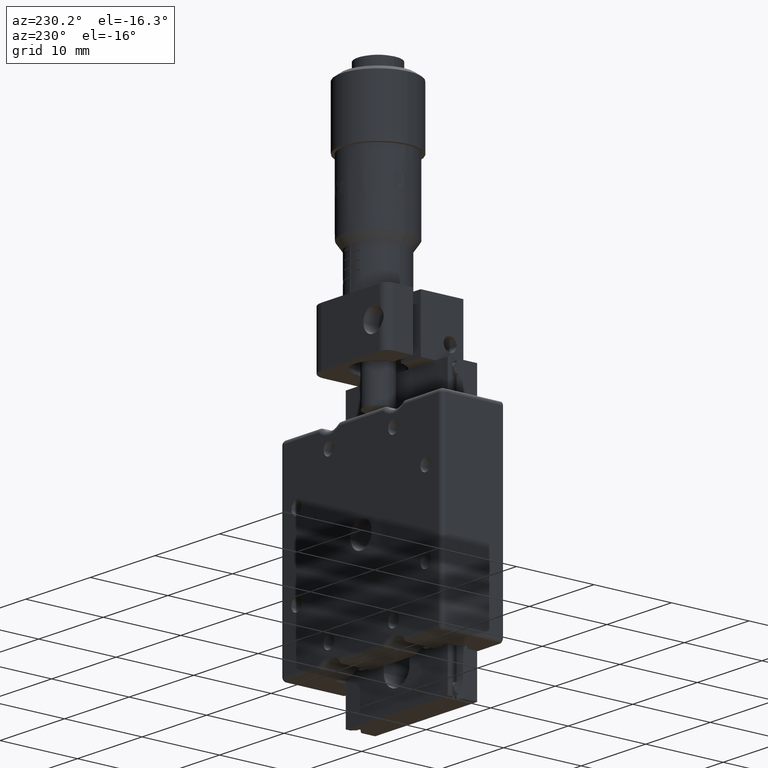
[diagram: clean part render]
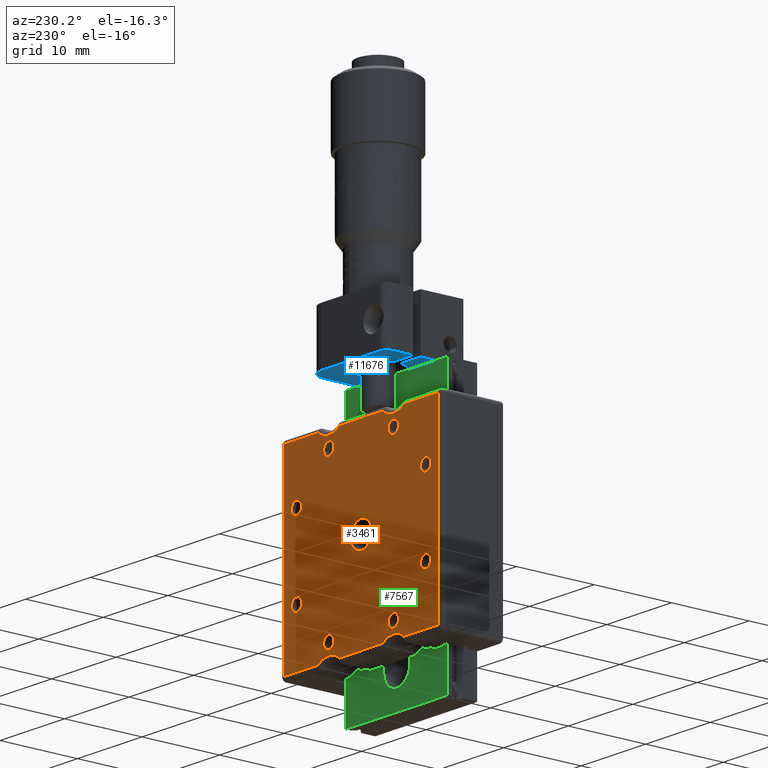
[diagram: same view with three faces highlighted in distinct colors, each labeled with its STEP entity id]
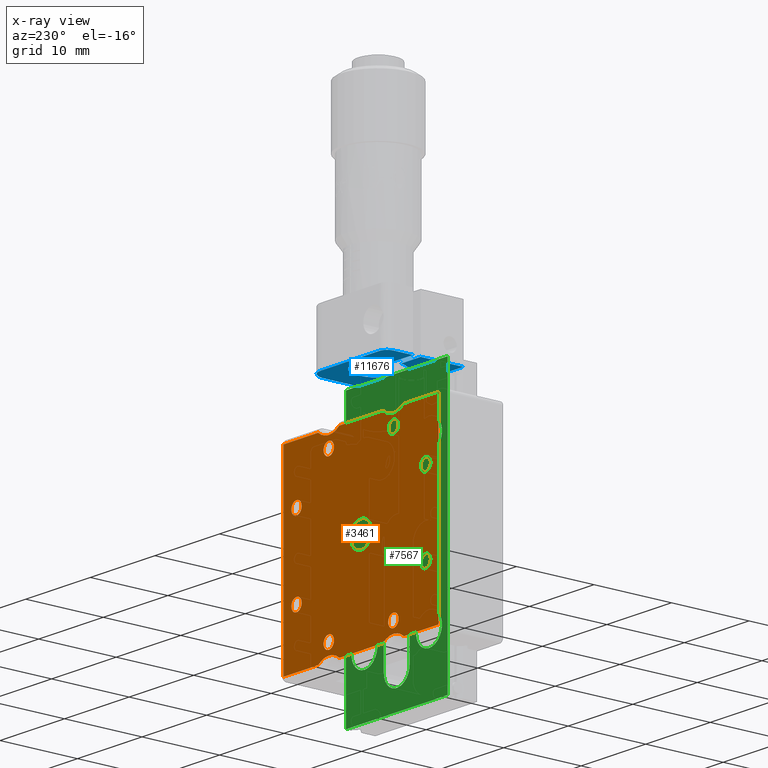
[diagram: x-ray of the same camera — body ghosted, the three highlighted faces saturated]
A machine part, auxiliary view with three faces highlighted in distinct colors.
The next image is the same camera in x-ray (body ghosted, the three faces saturated) — at least one of them is partly hidden behind the body in this view.
Their STEP definitions:

[orange] entity #3461 — the highlighted planar face has unit normal (-0, -1, -0).
#119 = AXIS2_PLACEMENT_3D ( 'NONE', #15915, #32267, #29663 ) ;
#176 = ORIENTED_EDGE ( 'NONE', *, *, #8855, .T. ) ;
#282 = DIRECTION ( 'NONE',  ( -1.224606353822329900E-016, 1.000000000000000000, 7.006492321624085400E-046 ) ) ;
#326 = DIRECTION ( 'NONE',  ( -4.044532502549928800E-021, -1.000000000000000000, -7.006492321624085400E-046 ) ) ;
#500 = DIRECTION ( 'NONE',  ( -1.224606353822329900E-016, 1.000000000000000000, 7.006492321624085400E-046 ) ) ;
#593 = CARTESIAN_POINT ( 'NONE',  ( 12.00000000000086300, 8.400000000000030600, -12.00000000000000000 ) ) ;
#758 = DIRECTION ( 'NONE',  ( -1.000000000000000000, 0.0000000000000000000, 0.0000000000000000000 ) ) ;
#854 = CARTESIAN_POINT ( 'NONE',  ( -9.999999999999136700, 8.400000000000030600, 4.200000000000012600 ) ) ;
#903 = CARTESIAN_POINT ( 'NONE',  ( 5.000000000000863300, 8.400000000000030600, -10.79999999999998800 ) ) ;
#992 = AXIS2_PLACEMENT_3D ( 'NONE', #5194, #32387, #15790 ) ;
#1005 = CIRCLE ( 'NONE', #26705, 0.7999999999999882800 ) ;
#1041 = EDGE_CURVE ( 'NONE', #24028, #10376, #7653, .T. ) ;
#1104 = DIRECTION ( 'NONE',  ( 0.0000000000000000000, 0.0000000000000000000, -1.000000000000000000 ) ) ;
#1442 = AXIS2_PLACEMENT_3D ( 'NONE', #12962, #32057, #31941 ) ;
#1452 = EDGE_CURVE ( 'NONE', #26220, #10313, #31424, .T. ) ;
#1453 = EDGE_LOOP ( 'NONE', ( #26961, #25171, #21685, #8122, #176, #30152, #15830, #29830, #18537, #23414, #3175, #18245 ) ) ;
#1531 = EDGE_CURVE ( 'NONE', #21323, #17814, #11037, .T. ) ;
#1537 = EDGE_CURVE ( 'NONE', #29341, #8365, #30989, .T. ) ;
#1688 = AXIS2_PLACEMENT_3D ( 'NONE', #17999, #12877, #31612 ) ;
#1898 = CARTESIAN_POINT ( 'NONE',  ( 10.00000000000086200, 8.400000000000030600, -5.000000000000000000 ) ) ;
#1962 = DIRECTION ( 'NONE',  ( -1.224606353822329900E-016, 1.000000000000000000, 7.006492321624085400E-046 ) ) ;
#2083 = CIRCLE ( 'NONE', #10636, 0.7999999999999882800 ) ;
#2183 = EDGE_CURVE ( 'NONE', #8365, #29341, #10181, .T. ) ;
#2433 = FACE_BOUND ( 'NONE', #30634, .T. ) ;
#2457 = DIRECTION ( 'NONE',  ( 0.0000000000000000000, 0.0000000000000000000, -1.000000000000000000 ) ) ;
#2535 = DIRECTION ( 'NONE',  ( -1.000000000000000000, 4.044532502549928800E-021, 8.580478394927459300E-062 ) ) ;
#2583 = CARTESIAN_POINT ( 'NONE',  ( 12.00000000000086300, 8.400000000000030600, -12.50000000000000000 ) ) ;
#2630 = AXIS2_PLACEMENT_3D ( 'NONE', #6811, #4083, #14912 ) ;
#2772 = ORIENTED_EDGE ( 'NONE', *, *, #3886, .F. ) ;
#3024 = VERTEX_POINT ( 'NONE', #33547 ) ;
#3112 = CARTESIAN_POINT ( 'NONE',  ( 10.00000000000086300, 8.400000000000030600, 5.799999999999986500 ) ) ;
#3175 = ORIENTED_EDGE ( 'NONE', *, *, #22542, .T. ) ;
#3198 = CARTESIAN_POINT ( 'NONE',  ( 5.000000000000863300, 8.400000000000030600, -9.200000000000011700 ) ) ;
#3321 = CARTESIAN_POINT ( 'NONE',  ( -12.49999999999913700, 8.400000000000030600, -12.50000000000000000 ) ) ;
#3362 = ORIENTED_EDGE ( 'NONE', *, *, #5575, .F. ) ;
#3461 = ADVANCED_FACE ( 'NONE', ( #12659, #31348, #16085, #24107, #2433, #28807, #16953, #33483, #8858, #30514 ), #8934, .F. ) ;
#3471 = VECTOR ( 'NONE', #8369, 1000.000000000000000 ) ;
#3478 = CARTESIAN_POINT ( 'NONE',  ( 3.375192319073669900, 8.400000000000030600, 12.00000000000000000 ) ) ;
#3886 = EDGE_CURVE ( 'NONE', #6226, #31809, #6694, .T. ) ;
#3949 = EDGE_CURVE ( 'NONE', #10313, #26220, #13075, .T. ) ;
#4083 = DIRECTION ( 'NONE',  ( -1.224606353822329900E-016, 1.000000000000000000, 7.006492321624085400E-046 ) ) ;
#4332 = AXIS2_PLACEMENT_3D ( 'NONE', #33725, #17478, #12113 ) ;
#4363 = CIRCLE ( 'NONE', #29155, 0.7999999999999882800 ) ;
#4373 = EDGE_CURVE ( 'NONE', #11868, #31459, #29595, .T. ) ;
#5194 = CARTESIAN_POINT ( 'NONE',  ( -9.999999999999136700, 8.400000000000030600, 5.000000000000000900 ) ) ;
#5213 = VERTEX_POINT ( 'NONE', #10132 ) ;
#5221 = AXIS2_PLACEMENT_3D ( 'NONE', #3321, #326, #27831 ) ;
#5575 = EDGE_CURVE ( 'NONE', #16766, #8465, #4363, .T. ) ;
#5695 = DIRECTION ( 'NONE',  ( 7.507670638184694700E-062, -6.130680781421074700E-046, -1.000000000000000000 ) ) ;
#6086 = CIRCLE ( 'NONE', #1442, 0.7999999999999882800 ) ;
#6226 = VERTEX_POINT ( 'NONE', #3112 ) ;
#6329 = EDGE_CURVE ( 'NONE', #32586, #20961, #32819, .T. ) ;
#6518 = AXIS2_PLACEMENT_3D ( 'NONE', #28107, #14799, #9107 ) ;
#6694 = CIRCLE ( 'NONE', #20932, 0.7999999999999882800 ) ;
#6811 = CARTESIAN_POINT ( 'NONE',  ( -4.999999999999130500, 8.400000000000030600, 10.00000000000000000 ) ) ;
#7281 = DIRECTION ( 'NONE',  ( 0.0000000000000000000, 0.0000000000000000000, -1.000000000000000000 ) ) ;
#7344 = EDGE_CURVE ( 'NONE', #14289, #11868, #31476, .T. ) ;
#7441 = ORIENTED_EDGE ( 'NONE', *, *, #24178, .F. ) ;
#7559 = EDGE_CURVE ( 'NONE', #34124, #34896, #20824, .T. ) ;
#7653 = LINE ( 'NONE', #19491, #31868 ) ;
#7712 = CARTESIAN_POINT ( 'NONE',  ( 5.000000000000863300, 8.400000000000030600, 9.200000000000011700 ) ) ;
#8038 = ORIENTED_EDGE ( 'NONE', *, *, #7559, .F. ) ;
#8122 = ORIENTED_EDGE ( 'NONE', *, *, #8845, .T. ) ;
#8233 = EDGE_CURVE ( 'NONE', #11828, #28618, #21627, .T. ) ;
#8365 = VERTEX_POINT ( 'NONE', #27031 ) ;
#8369 = DIRECTION ( 'NONE',  ( 1.000000000000000000, -4.044532502549928800E-021, -8.580478394927459300E-062 ) ) ;
#8380 = CARTESIAN_POINT ( 'NONE',  ( 12.00000000000086300, 8.400000000000030600, 12.00000000000000000 ) ) ;
#8465 = VERTEX_POINT ( 'NONE', #903 ) ;
#8554 = EDGE_CURVE ( 'NONE', #8465, #16766, #2083, .T. ) ;
#8711 = EDGE_CURVE ( 'NONE', #34896, #34124, #31817, .T. ) ;
#8783 = CARTESIAN_POINT ( 'NONE',  ( -9.999999999999134900, 8.400000000000030600, -4.999999999999997300 ) ) ;
#8801 = AXIS2_PLACEMENT_3D ( 'NONE', #16501, #30120, #27277 ) ;
#8845 = EDGE_CURVE ( 'NONE', #29030, #3024, #23730, .T. ) ;
#8855 = EDGE_CURVE ( 'NONE', #3024, #14289, #19109, .T. ) ;
#8858 = FACE_BOUND ( 'NONE', #29976, .T. ) ;
#8934 = PLANE ( 'NONE',  #5221 ) ;
#9065 = EDGE_LOOP ( 'NONE', ( #26368, #9853 ) ) ;
#9107 = DIRECTION ( 'NONE',  ( 0.0000000000000000000, 0.0000000000000000000, -1.000000000000000000 ) ) ;
#9214 = AXIS2_PLACEMENT_3D ( 'NONE', #11629, #30502, #758 ) ;
#9538 = DIRECTION ( 'NONE',  ( -1.000000000000000000, 4.044532502549928800E-021, 8.580478394927459300E-062 ) ) ;
#9545 = CIRCLE ( 'NONE', #8801, 0.7999999999999882800 ) ;
#9672 = CARTESIAN_POINT ( 'NONE',  ( 10.00000000000086200, 8.400000000000030600, -5.799999999999988300 ) ) ;
#9853 = ORIENTED_EDGE ( 'NONE', *, *, #8233, .F. ) ;
#10026 = CARTESIAN_POINT ( 'NONE',  ( -4.999999999999130500, 8.400000000000030600, 10.79999999999998800 ) ) ;
#10132 = CARTESIAN_POINT ( 'NONE',  ( 5.000000000000863300, 8.400000000000030600, 10.79999999999998800 ) ) ;
#10181 = CIRCLE ( 'NONE', #11570, 0.7999999999999882800 ) ;
#10313 = VERTEX_POINT ( 'NONE', #13839 ) ;
#10376 = VERTEX_POINT ( 'NONE', #3478 ) ;
#10417 = CARTESIAN_POINT ( 'NONE',  ( -12.49999999999913700, 8.400000000000030600, -12.00000000000000000 ) ) ;
#10636 = AXIS2_PLACEMENT_3D ( 'NONE', #26765, #13260, #26523 ) ;
#11037 = CIRCLE ( 'NONE', #2630, 0.7999999999999882800 ) ;
#11118 = CARTESIAN_POINT ( 'NONE',  ( -4.999999999999130500, 8.400000000000030600, -10.79999999999998800 ) ) ;
#11289 = AXIS2_PLACEMENT_3D ( 'NONE', #14107, #32967, #13750 ) ;
#11470 = CARTESIAN_POINT ( 'NONE',  ( -9.999999999999136700, 8.400000000000030600, 5.799999999999989200 ) ) ;
#11570 = AXIS2_PLACEMENT_3D ( 'NONE', #33077, #500, #16732 ) ;
#11629 = CARTESIAN_POINT ( 'NONE',  ( -4.999999999999136700, 8.400000000000030600, 13.89999999999999700 ) ) ;
#11828 = VERTEX_POINT ( 'NONE', #19669 ) ;
#11851 = DIRECTION ( 'NONE',  ( 0.0000000000000000000, 0.0000000000000000000, -1.000000000000000000 ) ) ;
#11868 = VERTEX_POINT ( 'NONE', #12041 ) ;
#11872 = DIRECTION ( 'NONE',  ( -4.044532502549928800E-021, -1.000000000000000000, -7.006492321624085400E-046 ) ) ;
#12041 = CARTESIAN_POINT ( 'NONE',  ( -3.375192319071941500, 8.400000000000030600, -12.00000000000000000 ) ) ;
#12048 = CARTESIAN_POINT ( 'NONE',  ( -11.99999999999913700, 8.400000000000030600, -12.00000000000000000 ) ) ;
#12113 = DIRECTION ( 'NONE',  ( -1.000000000000000000, 0.0000000000000000000, 0.0000000000000000000 ) ) ;
#12138 = VECTOR ( 'NONE', #5695, 1000.000000000000000 ) ;
#12188 = LINE ( 'NONE', #31725, #13046 ) ;
#12459 = AXIS2_PLACEMENT_3D ( 'NONE', #15207, #1962, #23590 ) ;
#12536 = AXIS2_PLACEMENT_3D ( 'NONE', #25500, #11872, #19972 ) ;
#12590 = VERTEX_POINT ( 'NONE', #29393 ) ;
#12659 = FACE_OUTER_BOUND ( 'NONE', #1453, .T. ) ;
#12674 = ORIENTED_EDGE ( 'NONE', *, *, #25319, .F. ) ;
#12735 = CIRCLE ( 'NONE', #12536, 2.500000000000000000 ) ;
#12877 = DIRECTION ( 'NONE',  ( -1.224606353822329900E-016, 1.000000000000000000, 7.006492321624085400E-046 ) ) ;
#12962 = CARTESIAN_POINT ( 'NONE',  ( 5.000000000000863300, 8.400000000000030600, 10.00000000000000000 ) ) ;
#13046 = VECTOR ( 'NONE', #15492, 1000.000000000000000 ) ;
#13075 = CIRCLE ( 'NONE', #16168, 0.7999999999999882800 ) ;
#13260 = DIRECTION ( 'NONE',  ( -1.224606353822329900E-016, 1.000000000000000000, 7.006492321624085400E-046 ) ) ;
#13750 = DIRECTION ( 'NONE',  ( 0.0000000000000000000, 0.0000000000000000000, -1.000000000000000000 ) ) ;
#13839 = CARTESIAN_POINT ( 'NONE',  ( -9.999999999999134900, 8.400000000000030600, -5.799999999999985600 ) ) ;
#14107 = CARTESIAN_POINT ( 'NONE',  ( -9.999999999999136700, 8.400000000000030600, 5.000000000000000900 ) ) ;
#14130 = DIRECTION ( 'NONE',  ( 0.0000000000000000000, 0.0000000000000000000, -1.000000000000000000 ) ) ;
#14289 = VERTEX_POINT ( 'NONE', #31869 ) ;
#14332 = CIRCLE ( 'NONE', #9214, 2.500000000000000400 ) ;
#14799 = DIRECTION ( 'NONE',  ( -1.224606353822329900E-016, 1.000000000000000000, 7.006492321624085400E-046 ) ) ;
#14912 = DIRECTION ( 'NONE',  ( 0.0000000000000000000, 0.0000000000000000000, -1.000000000000000000 ) ) ;
#14964 = ORIENTED_EDGE ( 'NONE', *, *, #24491, .F. ) ;
#15101 = ORIENTED_EDGE ( 'NONE', *, *, #1452, .F. ) ;
#15110 = LINE ( 'NONE', #2583, #12138 ) ;
#15207 = CARTESIAN_POINT ( 'NONE',  ( -4.999999999999130500, 8.400000000000030600, -10.00000000000000000 ) ) ;
#15244 = VECTOR ( 'NONE', #2535, 1000.000000000000000 ) ;
#15492 = DIRECTION ( 'NONE',  ( -7.507670638184694700E-062, 6.130680781421074700E-046, 1.000000000000000000 ) ) ;
#15790 = DIRECTION ( 'NONE',  ( 0.0000000000000000000, 0.0000000000000000000, -1.000000000000000000 ) ) ;
#15824 = EDGE_LOOP ( 'NONE', ( #23496, #8038 ) ) ;
#15830 = ORIENTED_EDGE ( 'NONE', *, *, #4373, .T. ) ;
#15915 = CARTESIAN_POINT ( 'NONE',  ( 5.000000000000866900, 8.400000000000030600, -13.89999999999999900 ) ) ;
#16085 = FACE_BOUND ( 'NONE', #28875, .T. ) ;
#16168 = AXIS2_PLACEMENT_3D ( 'NONE', #8783, #25136, #11851 ) ;
#16501 = CARTESIAN_POINT ( 'NONE',  ( -4.999999999999130500, 8.400000000000030600, 10.00000000000000000 ) ) ;
#16732 = DIRECTION ( 'NONE',  ( 0.0000000000000000000, 0.0000000000000000000, -1.000000000000000000 ) ) ;
#16763 = CARTESIAN_POINT ( 'NONE',  ( 10.00000000000086300, 8.400000000000030600, 4.999999999999998200 ) ) ;
#16766 = VERTEX_POINT ( 'NONE', #3198 ) ;
#16953 = FACE_BOUND ( 'NONE', #17183, .T. ) ;
#16994 = DIRECTION ( 'NONE',  ( 1.000000000000000000, -4.044532502549928800E-021, -8.580478394927459300E-062 ) ) ;
#17183 = EDGE_LOOP ( 'NONE', ( #25554, #3362 ) ) ;
#17478 = DIRECTION ( 'NONE',  ( -4.044532502549928800E-021, -1.000000000000000000, -7.006492321624085400E-046 ) ) ;
#17814 = VERTEX_POINT ( 'NONE', #23081 ) ;
#17999 = CARTESIAN_POINT ( 'NONE',  ( -4.999999999999130500, 8.400000000000030600, -10.00000000000000000 ) ) ;
#18245 = ORIENTED_EDGE ( 'NONE', *, *, #1041, .T. ) ;
#18329 = VECTOR ( 'NONE', #9538, 1000.000000000000000 ) ;
#18478 = CIRCLE ( 'NONE', #992, 0.7999999999999882800 ) ;
#18515 = CARTESIAN_POINT ( 'NONE',  ( -11.99999999999913700, 8.400000000000030600, 12.00000000000000000 ) ) ;
#18535 = EDGE_CURVE ( 'NONE', #10376, #32586, #12735, .T. ) ;
#18537 = ORIENTED_EDGE ( 'NONE', *, *, #32324, .T. ) ;
#18639 = CARTESIAN_POINT ( 'NONE',  ( 5.000000000000863300, 8.400000000000030600, -10.00000000000000000 ) ) ;
#18677 = CARTESIAN_POINT ( 'NONE',  ( -9.999999999999134900, 8.400000000000030600, -4.200000000000009100 ) ) ;
#18778 = DIRECTION ( 'NONE',  ( -1.224606353822329900E-016, 1.000000000000000000, 7.006492321624085400E-046 ) ) ;
#18812 = ORIENTED_EDGE ( 'NONE', *, *, #24637, .F. ) ;
#19009 = DIRECTION ( 'NONE',  ( 1.000000000000000000, -4.044532502549928800E-021, -8.580478394927459300E-062 ) ) ;
#19109 = CIRCLE ( 'NONE', #119, 2.500000000000000000 ) ;
#19491 = CARTESIAN_POINT ( 'NONE',  ( 3.571714314292290900, 8.400000000000030600, 12.00000000000000000 ) ) ;
#19564 = CARTESIAN_POINT ( 'NONE',  ( -6.624807680926325700, 8.400000000000030600, -12.00000000000000000 ) ) ;
#19668 = VERTEX_POINT ( 'NONE', #7712 ) ;
#19669 = CARTESIAN_POINT ( 'NONE',  ( 8.663820462318324000E-013, 8.400000000000030600, 1.649999999999988400 ) ) ;
#19753 = AXIS2_PLACEMENT_3D ( 'NONE', #1898, #29491, #7281 ) ;
#19883 = ORIENTED_EDGE ( 'NONE', *, *, #20587, .F. ) ;
#19972 = DIRECTION ( 'NONE',  ( -1.000000000000000000, 0.0000000000000000000, 0.0000000000000000000 ) ) ;
#20062 = CARTESIAN_POINT ( 'NONE',  ( 5.000000000000863300, 8.400000000000030600, 10.00000000000000000 ) ) ;
#20223 = EDGE_LOOP ( 'NONE', ( #12674, #19883 ) ) ;
#20466 = CARTESIAN_POINT ( 'NONE',  ( -12.49999999999913700, 8.400000000000030600, -12.00000000000000000 ) ) ;
#20487 = AXIS2_PLACEMENT_3D ( 'NONE', #35040, #18778, #2457 ) ;
#20587 = EDGE_CURVE ( 'NONE', #5213, #19668, #25768, .T. ) ;
#20824 = CIRCLE ( 'NONE', #1688, 0.7999999999999882800 ) ;
#20932 = AXIS2_PLACEMENT_3D ( 'NONE', #16763, #282, #14130 ) ;
#20961 = VERTEX_POINT ( 'NONE', #8380 ) ;
#21019 = EDGE_LOOP ( 'NONE', ( #25220, #15101 ) ) ;
#21323 = VERTEX_POINT ( 'NONE', #10026 ) ;
#21567 = DIRECTION ( 'NONE',  ( -1.000000000000000000, 4.044532502549928800E-021, 8.580478394927459300E-062 ) ) ;
#21627 = CIRCLE ( 'NONE', #32675, 1.649999999999988400 ) ;
#21685 = ORIENTED_EDGE ( 'NONE', *, *, #23392, .T. ) ;
#21980 = VERTEX_POINT ( 'NONE', #12048 ) ;
#22088 = DIRECTION ( 'NONE',  ( -1.224606353822329900E-016, 1.000000000000000000, 7.006492321624085400E-046 ) ) ;
#22190 = ORIENTED_EDGE ( 'NONE', *, *, #1537, .F. ) ;
#22206 = CARTESIAN_POINT ( 'NONE',  ( 10.00000000000086300, 8.400000000000030600, 4.999999999999998200 ) ) ;
#22542 = EDGE_CURVE ( 'NONE', #12590, #24028, #14332, .T. ) ;
#23081 = CARTESIAN_POINT ( 'NONE',  ( -4.999999999999130500, 8.400000000000030600, 9.200000000000011700 ) ) ;
#23158 = CARTESIAN_POINT ( 'NONE',  ( -3.375192319071940600, 8.400000000000030600, 12.00000000000000000 ) ) ;
#23392 = EDGE_CURVE ( 'NONE', #20961, #29030, #15110, .T. ) ;
#23414 = ORIENTED_EDGE ( 'NONE', *, *, #26631, .T. ) ;
#23496 = ORIENTED_EDGE ( 'NONE', *, *, #8711, .F. ) ;
#23590 = DIRECTION ( 'NONE',  ( 0.0000000000000000000, 0.0000000000000000000, -1.000000000000000000 ) ) ;
#23596 = DIRECTION ( 'NONE',  ( -1.224606353822329900E-016, 1.000000000000000000, 7.006492321624085400E-046 ) ) ;
#23730 = LINE ( 'NONE', #26671, #24586 ) ;
#24028 = VERTEX_POINT ( 'NONE', #23158 ) ;
#24107 = FACE_BOUND ( 'NONE', #20223, .T. ) ;
#24178 = EDGE_CURVE ( 'NONE', #31809, #6226, #1005, .T. ) ;
#24491 = EDGE_CURVE ( 'NONE', #32063, #24815, #18478, .T. ) ;
#24586 = VECTOR ( 'NONE', #21567, 1000.000000000000000 ) ;
#24603 = EDGE_CURVE ( 'NONE', #24815, #32063, #31188, .T. ) ;
#24637 = EDGE_CURVE ( 'NONE', #17814, #21323, #9545, .T. ) ;
#24724 = DIRECTION ( 'NONE',  ( 0.0000000000000000000, 0.0000000000000000000, -1.000000000000000000 ) ) ;
#24815 = VERTEX_POINT ( 'NONE', #854 ) ;
#25044 = DIRECTION ( 'NONE',  ( 0.0000000000000000000, 0.0000000000000000000, -1.000000000000000000 ) ) ;
#25136 = DIRECTION ( 'NONE',  ( -1.224606353822329900E-016, 1.000000000000000000, 7.006492321624085400E-046 ) ) ;
#25171 = ORIENTED_EDGE ( 'NONE', *, *, #6329, .T. ) ;
#25220 = ORIENTED_EDGE ( 'NONE', *, *, #3949, .F. ) ;
#25319 = EDGE_CURVE ( 'NONE', #19668, #5213, #6086, .T. ) ;
#25500 = CARTESIAN_POINT ( 'NONE',  ( 5.000000000000863300, 8.400000000000030600, 13.89999999999999900 ) ) ;
#25554 = ORIENTED_EDGE ( 'NONE', *, *, #8554, .F. ) ;
#25566 = LINE ( 'NONE', #30025, #28562 ) ;
#25630 = CARTESIAN_POINT ( 'NONE',  ( 8.663330686511581400E-013, 8.400000000000030600, -1.649999999999988400 ) ) ;
#25649 = CARTESIAN_POINT ( 'NONE',  ( -4.999999999999130500, 8.400000000000030600, -9.200000000000011700 ) ) ;
#25768 = CIRCLE ( 'NONE', #30527, 0.7999999999999882800 ) ;
#26220 = VERTEX_POINT ( 'NONE', #18677 ) ;
#26368 = ORIENTED_EDGE ( 'NONE', *, *, #34364, .F. ) ;
#26523 = DIRECTION ( 'NONE',  ( 0.0000000000000000000, 0.0000000000000000000, -1.000000000000000000 ) ) ;
#26631 = EDGE_CURVE ( 'NONE', #30073, #12590, #25566, .T. ) ;
#26671 = CARTESIAN_POINT ( 'NONE',  ( -12.49999999999913700, 8.400000000000030600, -12.00000000000000000 ) ) ;
#26705 = AXIS2_PLACEMENT_3D ( 'NONE', #22206, #22088, #25044 ) ;
#26765 = CARTESIAN_POINT ( 'NONE',  ( 5.000000000000863300, 8.400000000000030600, -10.00000000000000000 ) ) ;
#26961 = ORIENTED_EDGE ( 'NONE', *, *, #18535, .T. ) ;
#27031 = CARTESIAN_POINT ( 'NONE',  ( 10.00000000000086200, 8.400000000000030600, -4.200000000000011700 ) ) ;
#27277 = DIRECTION ( 'NONE',  ( 0.0000000000000000000, 0.0000000000000000000, -1.000000000000000000 ) ) ;
#27735 = CARTESIAN_POINT ( 'NONE',  ( 8.663330686511581400E-013, 8.400000000000030600, -7.244863524839539800E-017 ) ) ;
#27831 = DIRECTION ( 'NONE',  ( -1.000000000000000000, 4.044532502549928800E-021, 8.580478394927459300E-062 ) ) ;
#28107 = CARTESIAN_POINT ( 'NONE',  ( -9.999999999999134900, 8.400000000000030600, -4.999999999999997300 ) ) ;
#28562 = VECTOR ( 'NONE', #16994, 1000.000000000000000 ) ;
#28618 = VERTEX_POINT ( 'NONE', #25630 ) ;
#28807 = FACE_BOUND ( 'NONE', #15824, .T. ) ;
#28827 = LINE ( 'NONE', #10417, #15244 ) ;
#28875 = EDGE_LOOP ( 'NONE', ( #7441, #2772 ) ) ;
#29030 = VERTEX_POINT ( 'NONE', #593 ) ;
#29155 = AXIS2_PLACEMENT_3D ( 'NONE', #18639, #23596, #31792 ) ;
#29341 = VERTEX_POINT ( 'NONE', #9672 ) ;
#29393 = CARTESIAN_POINT ( 'NONE',  ( -6.624807680926333700, 8.400000000000030600, 12.00000000000000000 ) ) ;
#29491 = DIRECTION ( 'NONE',  ( -1.224606353822329900E-016, 1.000000000000000000, 7.006492321624085400E-046 ) ) ;
#29595 = CIRCLE ( 'NONE', #4332, 2.500000000000000400 ) ;
#29663 = DIRECTION ( 'NONE',  ( -1.000000000000000000, 0.0000000000000000000, 0.0000000000000000000 ) ) ;
#29830 = ORIENTED_EDGE ( 'NONE', *, *, #31268, .T. ) ;
#29976 = EDGE_LOOP ( 'NONE', ( #22190, #33456 ) ) ;
#30025 = CARTESIAN_POINT ( 'NONE',  ( -6.428285685707710900, 8.400000000000030600, 12.00000000000000000 ) ) ;
#30073 = VERTEX_POINT ( 'NONE', #18515 ) ;
#30120 = DIRECTION ( 'NONE',  ( -1.224606353822329900E-016, 1.000000000000000000, 7.006492321624085400E-046 ) ) ;
#30152 = ORIENTED_EDGE ( 'NONE', *, *, #7344, .T. ) ;
#30502 = DIRECTION ( 'NONE',  ( -4.044532502549928800E-021, -1.000000000000000000, -7.006492321624085400E-046 ) ) ;
#30514 = FACE_BOUND ( 'NONE', #32367, .T. ) ;
#30527 = AXIS2_PLACEMENT_3D ( 'NONE', #20062, #30724, #1104 ) ;
#30532 = CARTESIAN_POINT ( 'NONE',  ( 6.624807680928056700, 8.400000000000030600, 12.00000000000000000 ) ) ;
#30634 = EDGE_LOOP ( 'NONE', ( #18812, #33198 ) ) ;
#30724 = DIRECTION ( 'NONE',  ( -1.224606353822329900E-016, 1.000000000000000000, 7.006492321624085400E-046 ) ) ;
#30989 = CIRCLE ( 'NONE', #19753, 0.7999999999999882800 ) ;
#31188 = CIRCLE ( 'NONE', #11289, 0.7999999999999882800 ) ;
#31222 = CIRCLE ( 'NONE', #20487, 1.649999999999988400 ) ;
#31268 = EDGE_CURVE ( 'NONE', #31459, #21980, #28827, .T. ) ;
#31348 = FACE_BOUND ( 'NONE', #9065, .T. ) ;
#31424 = CIRCLE ( 'NONE', #6518, 0.7999999999999882800 ) ;
#31459 = VERTEX_POINT ( 'NONE', #19564 ) ;
#31476 = LINE ( 'NONE', #20466, #18329 ) ;
#31502 = ORIENTED_EDGE ( 'NONE', *, *, #24603, .F. ) ;
#31537 = CARTESIAN_POINT ( 'NONE',  ( 10.00000000000086300, 8.400000000000030600, 4.200000000000009900 ) ) ;
#31612 = DIRECTION ( 'NONE',  ( 0.0000000000000000000, 0.0000000000000000000, -1.000000000000000000 ) ) ;
#31725 = CARTESIAN_POINT ( 'NONE',  ( -11.99999999999913700, 8.400000000000030600, -12.50000000000000000 ) ) ;
#31792 = DIRECTION ( 'NONE',  ( 0.0000000000000000000, 0.0000000000000000000, -1.000000000000000000 ) ) ;
#31809 = VERTEX_POINT ( 'NONE', #31537 ) ;
#31817 = CIRCLE ( 'NONE', #12459, 0.7999999999999882800 ) ;
#31868 = VECTOR ( 'NONE', #19009, 1000.000000000000000 ) ;
#31869 = CARTESIAN_POINT ( 'NONE',  ( 3.375192319073673500, 8.400000000000030600, -12.00000000000000000 ) ) ;
#31941 = DIRECTION ( 'NONE',  ( 0.0000000000000000000, 0.0000000000000000000, -1.000000000000000000 ) ) ;
#32057 = DIRECTION ( 'NONE',  ( -1.224606353822329900E-016, 1.000000000000000000, 7.006492321624085400E-046 ) ) ;
#32063 = VERTEX_POINT ( 'NONE', #11470 ) ;
#32267 = DIRECTION ( 'NONE',  ( -4.044532502549928800E-021, -1.000000000000000000, -7.006492321624085400E-046 ) ) ;
#32324 = EDGE_CURVE ( 'NONE', #21980, #30073, #12188, .T. ) ;
#32367 = EDGE_LOOP ( 'NONE', ( #31502, #14964 ) ) ;
#32387 = DIRECTION ( 'NONE',  ( -1.224606353822329900E-016, 1.000000000000000000, 7.006492321624085400E-046 ) ) ;
#32586 = VERTEX_POINT ( 'NONE', #30532 ) ;
#32675 = AXIS2_PLACEMENT_3D ( 'NONE', #27735, #33050, #24724 ) ;
#32819 = LINE ( 'NONE', #35321, #3471 ) ;
#32967 = DIRECTION ( 'NONE',  ( -1.224606353822329900E-016, 1.000000000000000000, 7.006492321624085400E-046 ) ) ;
#33050 = DIRECTION ( 'NONE',  ( -1.224606353822329900E-016, 1.000000000000000000, 7.006492321624085400E-046 ) ) ;
#33077 = CARTESIAN_POINT ( 'NONE',  ( 10.00000000000086200, 8.400000000000030600, -5.000000000000000000 ) ) ;
#33198 = ORIENTED_EDGE ( 'NONE', *, *, #1531, .F. ) ;
#33456 = ORIENTED_EDGE ( 'NONE', *, *, #2183, .F. ) ;
#33483 = FACE_BOUND ( 'NONE', #21019, .T. ) ;
#33547 = CARTESIAN_POINT ( 'NONE',  ( 6.624807680928060300, 8.400000000000030600, -12.00000000000000000 ) ) ;
#33725 = CARTESIAN_POINT ( 'NONE',  ( -4.999999999999134000, 8.400000000000030600, -13.90000000000000000 ) ) ;
#34124 = VERTEX_POINT ( 'NONE', #25649 ) ;
#34364 = EDGE_CURVE ( 'NONE', #28618, #11828, #31222, .T. ) ;
#34896 = VERTEX_POINT ( 'NONE', #11118 ) ;
#35040 = CARTESIAN_POINT ( 'NONE',  ( 8.663330686511581400E-013, 8.400000000000030600, -7.244863524839539800E-017 ) ) ;
#35321 = CARTESIAN_POINT ( 'NONE',  ( 12.50000000000086500, 8.400000000000030600, 12.00000000000000000 ) ) ;

[blue] entity #11676 — the highlighted planar face has unit normal (0, -0, 1).
#295 = DIRECTION ( 'NONE',  ( 2.775557561562891400E-016, 1.142172911347806300E-016, -1.000000000000000000 ) ) ;
#470 = DIRECTION ( 'NONE',  ( -1.000000000000000000, 5.204170427930424200E-016, 0.0000000000000000000 ) ) ;
#780 = EDGE_CURVE ( 'NONE', #8758, #27624, #5132, .T. ) ;
#871 = CARTESIAN_POINT ( 'NONE',  ( -2.599999999999130100, 2.200000000000004200, 17.50000000000000000 ) ) ;
#1346 = CARTESIAN_POINT ( 'NONE',  ( -5.999999999999140200, 6.700000000000000200, 17.50000000000000000 ) ) ;
#1730 = EDGE_LOOP ( 'NONE', ( #10606, #24079 ) ) ;
#1984 = CARTESIAN_POINT ( 'NONE',  ( 3.500000000000871300, 2.199999999999998400, 17.50000000000000000 ) ) ;
#1997 = CIRCLE ( 'NONE', #19414, 0.8999999999999989100 ) ;
#2094 = CARTESIAN_POINT ( 'NONE',  ( -5.999999999999134900, 5.699999999999999300, 17.50000000000000000 ) ) ;
#2703 = VECTOR ( 'NONE', #20014, 1000.000000000000000 ) ;
#2770 = DIRECTION ( 'NONE',  ( 2.775557561562891400E-016, 1.142172911347806300E-016, -1.000000000000000000 ) ) ;
#2958 = VERTEX_POINT ( 'NONE', #8148 ) ;
#4324 = AXIS2_PLACEMENT_3D ( 'NONE', #32934, #11446, #470 ) ;
#4860 = LINE ( 'NONE', #27395, #26498 ) ;
#5073 = ORIENTED_EDGE ( 'NONE', *, *, #15362, .T. ) ;
#5132 = CIRCLE ( 'NONE', #23548, 0.8999999999999989100 ) ;
#5133 = LINE ( 'NONE', #13917, #14127 ) ;
#5239 = AXIS2_PLACEMENT_3D ( 'NONE', #21789, #2770, #5999 ) ;
#5999 = DIRECTION ( 'NONE',  ( -1.000000000000000000, 5.204170427930424200E-016, 0.0000000000000000000 ) ) ;
#6034 = VERTEX_POINT ( 'NONE', #6949 ) ;
#6118 = VECTOR ( 'NONE', #23105, 1000.000000000000000 ) ;
#6400 = CARTESIAN_POINT ( 'NONE',  ( -1.249999999999130500, 1.900000000000003000, 17.50000000000000000 ) ) ;
#6614 = ORIENTED_EDGE ( 'NONE', *, *, #20920, .T. ) ;
#6703 = VECTOR ( 'NONE', #29638, 1000.000000000000000 ) ;
#6949 = CARTESIAN_POINT ( 'NONE',  ( -5.999999999999140200, 6.700000000000000200, 17.50000000000000000 ) ) ;
#7035 = VERTEX_POINT ( 'NONE', #9102 ) ;
#7485 = CARTESIAN_POINT ( 'NONE',  ( 8.671725009159686000E-013, 6.200000000000000200, 17.50000000000000000 ) ) ;
#7735 = AXIS2_PLACEMENT_3D ( 'NONE', #22992, #9256, #28272 ) ;
#7905 = EDGE_LOOP ( 'NONE', ( #14407, #6614 ) ) ;
#7935 = CARTESIAN_POINT ( 'NONE',  ( -2.958039891548940300, 5.699999999999999300, 17.50000000000000000 ) ) ;
#8148 = CARTESIAN_POINT ( 'NONE',  ( 6.000000000000859800, 8.199999999999978000, 17.49999999999999600 ) ) ;
#8252 = DIRECTION ( 'NONE',  ( 5.551115123125781700E-016, -1.142172911347810500E-016, 1.000000000000000000 ) ) ;
#8758 = VERTEX_POINT ( 'NONE', #23703 ) ;
#9102 = CARTESIAN_POINT ( 'NONE',  ( -4.399999999999127300, 2.200000000000006800, 17.50000000000000000 ) ) ;
#9256 = DIRECTION ( 'NONE',  ( -2.775557561562891400E-016, -1.142172911347806300E-016, 1.000000000000000000 ) ) ;
#9438 = EDGE_CURVE ( 'NONE', #18928, #32299, #25409, .T. ) ;
#9977 = LINE ( 'NONE', #22474, #2703 ) ;
#10527 = LINE ( 'NONE', #32480, #6703 ) ;
#10606 = ORIENTED_EDGE ( 'NONE', *, *, #12651, .F. ) ;
#10694 = ORIENTED_EDGE ( 'NONE', *, *, #30811, .T. ) ;
#10997 = CARTESIAN_POINT ( 'NONE',  ( -4.999999999999137600, 10.19999999999998000, 17.49999999999999600 ) ) ;
#11063 = DIRECTION ( 'NONE',  ( 4.195944496594880600E-016, -1.000000000000000000, 5.082140893937399600E-016 ) ) ;
#11446 = DIRECTION ( 'NONE',  ( 2.775557561562891400E-016, 1.142172911347806300E-016, -1.000000000000000000 ) ) ;
#11531 = VERTEX_POINT ( 'NONE', #871 ) ;
#11676 = ADVANCED_FACE ( 'NONE', ( #28728, #35109, #31707, #16003 ), #21890, .F. ) ;
#11864 = VERTEX_POINT ( 'NONE', #33651 ) ;
#12651 = EDGE_CURVE ( 'NONE', #35303, #32767, #24406, .T. ) ;
#12707 = CIRCLE ( 'NONE', #21600, 1.000000000000000000 ) ;
#13262 = ORIENTED_EDGE ( 'NONE', *, *, #20068, .T. ) ;
#13477 = CARTESIAN_POINT ( 'NONE',  ( -3.499999999999128700, 2.200000000000004600, 17.50000000000000000 ) ) ;
#13760 = EDGE_CURVE ( 'NONE', #20347, #18928, #27806, .T. ) ;
#13881 = VECTOR ( 'NONE', #32172, 1000.000000000000000 ) ;
#13893 = DIRECTION ( 'NONE',  ( 2.775557561562891400E-016, 1.142172911347806300E-016, -1.000000000000000000 ) ) ;
#13917 = CARTESIAN_POINT ( 'NONE',  ( 6.000000000000866000, 0.2000000000000033400, 17.50000000000000000 ) ) ;
#14127 = VECTOR ( 'NONE', #11063, 1000.000000000000000 ) ;
#14303 = ORIENTED_EDGE ( 'NONE', *, *, #9438, .T. ) ;
#14407 = ORIENTED_EDGE ( 'NONE', *, *, #31045, .T. ) ;
#14481 = EDGE_CURVE ( 'NONE', #31467, #29039, #9977, .T. ) ;
#14546 = ORIENTED_EDGE ( 'NONE', *, *, #22461, .T. ) ;
#14562 = CARTESIAN_POINT ( 'NONE',  ( 8.671725009159686000E-013, 6.200000000000000200, 17.50000000000000000 ) ) ;
#14810 = CIRCLE ( 'NONE', #7735, 0.8999999999999989100 ) ;
#14984 = EDGE_LOOP ( 'NONE', ( #22510, #10694, #25923, #30154, #24310, #5073, #13262, #14546, #25282, #14303, #20996 ) ) ;
#15347 = DIRECTION ( 'NONE',  ( 1.000000000000000000, -4.818676322157803300E-016, 0.0000000000000000000 ) ) ;
#15362 = EDGE_CURVE ( 'NONE', #25095, #27795, #23902, .T. ) ;
#15459 = EDGE_LOOP ( 'NONE', ( #15571, #23419 ) ) ;
#15571 = ORIENTED_EDGE ( 'NONE', *, *, #28901, .T. ) ;
#15940 = DIRECTION ( 'NONE',  ( 1.000000000000000000, -5.782411586589360600E-016, 0.0000000000000000000 ) ) ;
#16003 = FACE_OUTER_BOUND ( 'NONE', #14984, .T. ) ;
#16233 = DIRECTION ( 'NONE',  ( -2.775557561562891400E-016, -1.142172911347806300E-016, 1.000000000000000000 ) ) ;
#16599 = CARTESIAN_POINT ( 'NONE',  ( 4.000000000000859800, 10.19999999999997800, 17.49999999999999600 ) ) ;
#16889 = CARTESIAN_POINT ( 'NONE',  ( 4.000000000000859800, 8.199999999999978000, 17.49999999999999600 ) ) ;
#17177 = DIRECTION ( 'NONE',  ( 1.000000000000000000, -5.782411586589360600E-016, 0.0000000000000000000 ) ) ;
#17475 = CIRCLE ( 'NONE', #17962, 0.8999999999999989100 ) ;
#17962 = AXIS2_PLACEMENT_3D ( 'NONE', #23098, #28486, #31533 ) ;
#18701 = AXIS2_PLACEMENT_3D ( 'NONE', #7485, #26461, #15940 ) ;
#18928 = VERTEX_POINT ( 'NONE', #27032 ) ;
#18950 = DIRECTION ( 'NONE',  ( 1.000000000000000000, -4.818676322157803300E-016, 0.0000000000000000000 ) ) ;
#19371 = DIRECTION ( 'NONE',  ( 1.000000000000000000, -1.734723475976807100E-015, 0.0000000000000000000 ) ) ;
#19414 = AXIS2_PLACEMENT_3D ( 'NONE', #13477, #16233, #18950 ) ;
#19490 = CARTESIAN_POINT ( 'NONE',  ( -4.999999999999137600, 9.199999999999981500, 17.50000000000000000 ) ) ;
#19634 = CARTESIAN_POINT ( 'NONE',  ( -5.999999999999134900, 0.2000000000000107200, 17.50000000000000000 ) ) ;
#20014 = DIRECTION ( 'NONE',  ( 1.000000000000000000, -6.332852540071314300E-016, -5.551115123125781700E-016 ) ) ;
#20068 = EDGE_CURVE ( 'NONE', #27795, #11864, #10527, .T. ) ;
#20347 = VERTEX_POINT ( 'NONE', #7935 ) ;
#20585 = LINE ( 'NONE', #1346, #6118 ) ;
#20920 = EDGE_CURVE ( 'NONE', #7035, #11531, #1997, .T. ) ;
#20996 = ORIENTED_EDGE ( 'NONE', *, *, #34635, .T. ) ;
#21600 = AXIS2_PLACEMENT_3D ( 'NONE', #19490, #295, #19371 ) ;
#21789 = CARTESIAN_POINT ( 'NONE',  ( 8.689767570495043400E-013, 1.900000000000002400, 17.50000000000000000 ) ) ;
#21890 = PLANE ( 'NONE',  #32988 ) ;
#22461 = EDGE_CURVE ( 'NONE', #11864, #20347, #22789, .T. ) ;
#22474 = CARTESIAN_POINT ( 'NONE',  ( 6.000000000000859800, 10.19999999999997800, 17.49999999999999600 ) ) ;
#22510 = ORIENTED_EDGE ( 'NONE', *, *, #24561, .T. ) ;
#22789 = LINE ( 'NONE', #2094, #13881 ) ;
#22992 = CARTESIAN_POINT ( 'NONE',  ( -3.499999999999128700, 2.200000000000004600, 17.50000000000000000 ) ) ;
#23098 = CARTESIAN_POINT ( 'NONE',  ( 3.500000000000871300, 2.199999999999998400, 17.50000000000000000 ) ) ;
#23105 = DIRECTION ( 'NONE',  ( -1.000000000000000000, 4.887249643423979300E-016, 5.551115123125781700E-016 ) ) ;
#23278 = CIRCLE ( 'NONE', #5239, 1.249999999999999300 ) ;
#23419 = ORIENTED_EDGE ( 'NONE', *, *, #780, .T. ) ;
#23548 = AXIS2_PLACEMENT_3D ( 'NONE', #1984, #31579, #15347 ) ;
#23703 = CARTESIAN_POINT ( 'NONE',  ( 2.600000000000872700, 2.200000000000000600, 17.50000000000000000 ) ) ;
#23902 = LINE ( 'NONE', #28126, #29045 ) ;
#24079 = ORIENTED_EDGE ( 'NONE', *, *, #31381, .F. ) ;
#24310 = ORIENTED_EDGE ( 'NONE', *, *, #27612, .T. ) ;
#24406 = CIRCLE ( 'NONE', #4324, 1.249999999999999300 ) ;
#24520 = DIRECTION ( 'NONE',  ( -2.461221020618070500E-016, 1.000000000000000000, -5.082140893937400600E-016 ) ) ;
#24561 = EDGE_CURVE ( 'NONE', #6034, #26893, #4860, .T. ) ;
#24962 = AXIS2_PLACEMENT_3D ( 'NONE', #14562, #30457, #17177 ) ;
#25095 = VERTEX_POINT ( 'NONE', #25187 ) ;
#25187 = CARTESIAN_POINT ( 'NONE',  ( 6.000000000000866000, 0.2000000000000033400, 17.50000000000000000 ) ) ;
#25282 = ORIENTED_EDGE ( 'NONE', *, *, #13760, .T. ) ;
#25409 = CIRCLE ( 'NONE', #24962, 2.999999999999998200 ) ;
#25923 = ORIENTED_EDGE ( 'NONE', *, *, #14481, .T. ) ;
#26461 = DIRECTION ( 'NONE',  ( -2.775557561562891400E-016, -1.142172911347806300E-016, 1.000000000000000000 ) ) ;
#26479 = CARTESIAN_POINT ( 'NONE',  ( -2.958039891548944300, 6.699999999999968200, 17.50000000000000000 ) ) ;
#26498 = VECTOR ( 'NONE', #24520, 1000.000000000000000 ) ;
#26893 = VERTEX_POINT ( 'NONE', #28818 ) ;
#27032 = CARTESIAN_POINT ( 'NONE',  ( 3.000000000000865500, 6.199999999999994000, 17.50000000000000000 ) ) ;
#27240 = CARTESIAN_POINT ( 'NONE',  ( -5.999999999999138500, 10.19999999999998000, 17.50000000000000000 ) ) ;
#27395 = CARTESIAN_POINT ( 'NONE',  ( -5.999999999999134900, 0.2000000000000107200, 17.50000000000000000 ) ) ;
#27426 = DIRECTION ( 'NONE',  ( 1.000000000000000000, 3.469446951953614200E-015, 0.0000000000000000000 ) ) ;
#27577 = CARTESIAN_POINT ( 'NONE',  ( 4.400000000000869900, 2.199999999999998000, 17.50000000000000000 ) ) ;
#27612 = EDGE_CURVE ( 'NONE', #2958, #25095, #5133, .T. ) ;
#27624 = VERTEX_POINT ( 'NONE', #27577 ) ;
#27771 = AXIS2_PLACEMENT_3D ( 'NONE', #16889, #13893, #27426 ) ;
#27795 = VERTEX_POINT ( 'NONE', #19634 ) ;
#27806 = CIRCLE ( 'NONE', #18701, 2.999999999999998200 ) ;
#27904 = CARTESIAN_POINT ( 'NONE',  ( 1.250000000000868200, 1.900000000000001700, 17.50000000000000000 ) ) ;
#28126 = CARTESIAN_POINT ( 'NONE',  ( 6.000000000000866000, 0.2000000000000033400, 17.50000000000000000 ) ) ;
#28272 = DIRECTION ( 'NONE',  ( 1.000000000000000000, -4.818676322157803300E-016, 0.0000000000000000000 ) ) ;
#28486 = DIRECTION ( 'NONE',  ( -2.775557561562891400E-016, -1.142172911347806300E-016, 1.000000000000000000 ) ) ;
#28728 = FACE_BOUND ( 'NONE', #1730, .T. ) ;
#28818 = CARTESIAN_POINT ( 'NONE',  ( -5.999999999999138500, 9.199999999999981500, 17.50000000000000000 ) ) ;
#28901 = EDGE_CURVE ( 'NONE', #27624, #8758, #17475, .T. ) ;
#29039 = VERTEX_POINT ( 'NONE', #16599 ) ;
#29045 = VECTOR ( 'NONE', #33448, 1000.000000000000000 ) ;
#29638 = DIRECTION ( 'NONE',  ( -2.461221020618070500E-016, 1.000000000000000000, -5.082140893937400600E-016 ) ) ;
#30154 = ORIENTED_EDGE ( 'NONE', *, *, #34457, .T. ) ;
#30457 = DIRECTION ( 'NONE',  ( -2.775557561562891400E-016, -1.142172911347806300E-016, 1.000000000000000000 ) ) ;
#30811 = EDGE_CURVE ( 'NONE', #26893, #31467, #12707, .T. ) ;
#31045 = EDGE_CURVE ( 'NONE', #11531, #7035, #14810, .T. ) ;
#31381 = EDGE_CURVE ( 'NONE', #32767, #35303, #23278, .T. ) ;
#31467 = VERTEX_POINT ( 'NONE', #10997 ) ;
#31533 = DIRECTION ( 'NONE',  ( 1.000000000000000000, -4.818676322157803300E-016, 0.0000000000000000000 ) ) ;
#31579 = DIRECTION ( 'NONE',  ( -2.775557561562891400E-016, -1.142172911347806300E-016, 1.000000000000000000 ) ) ;
#31707 = FACE_BOUND ( 'NONE', #15459, .T. ) ;
#32172 = DIRECTION ( 'NONE',  ( 1.000000000000000000, -4.887249643423979300E-016, -5.551115123125781700E-016 ) ) ;
#32299 = VERTEX_POINT ( 'NONE', #26479 ) ;
#32467 = DIRECTION ( 'NONE',  ( 1.000000000000000000, -4.887249643423979300E-016, -5.551115123125782700E-016 ) ) ;
#32480 = CARTESIAN_POINT ( 'NONE',  ( -5.999999999999134900, 0.2000000000000107200, 17.50000000000000000 ) ) ;
#32767 = VERTEX_POINT ( 'NONE', #27904 ) ;
#32934 = CARTESIAN_POINT ( 'NONE',  ( 8.689767570495043400E-013, 1.900000000000002400, 17.50000000000000000 ) ) ;
#32988 = AXIS2_PLACEMENT_3D ( 'NONE', #27240, #8252, #32467 ) ;
#33357 = CIRCLE ( 'NONE', #27771, 2.000000000000000000 ) ;
#33448 = DIRECTION ( 'NONE',  ( -1.000000000000000000, 6.111896442571328800E-016, 5.551115123125781700E-016 ) ) ;
#33651 = CARTESIAN_POINT ( 'NONE',  ( -5.999999999999134900, 5.699999999999999300, 17.50000000000000000 ) ) ;
#34457 = EDGE_CURVE ( 'NONE', #29039, #2958, #33357, .T. ) ;
#34635 = EDGE_CURVE ( 'NONE', #32299, #6034, #20585, .T. ) ;
#35109 = FACE_BOUND ( 'NONE', #7905, .T. ) ;
#35303 = VERTEX_POINT ( 'NONE', #6400 ) ;

[green] entity #7567 — the highlighted planar face has unit normal (-0, -1, -0).
#188 = DIRECTION ( 'NONE',  ( 0.0000000000000000000, 1.000000000000000000, -1.387778780781445900E-015 ) ) ;
#271 = DIRECTION ( 'NONE',  ( 1.000000000000000000, 0.0000000000000000000, -0.0000000000000000000 ) ) ;
#1037 = VECTOR ( 'NONE', #6006, 1000.000000000000000 ) ;
#1045 = LINE ( 'NONE', #27525, #6611 ) ;
#1151 = DIRECTION ( 'NONE',  ( 0.0000000000000000000, 1.000000000000000000, -1.387778780781445900E-015 ) ) ;
#1352 = EDGE_LOOP ( 'NONE', ( #10126, #13230 ) ) ;
#1524 = AXIS2_PLACEMENT_3D ( 'NONE', #14761, #1151, #20109 ) ;
#1553 = DIRECTION ( 'NONE',  ( 0.0000000000000000000, 1.000000000000000000, -1.387778780781445900E-015 ) ) ;
#2187 = DIRECTION ( 'NONE',  ( 0.0000000000000000000, 1.000000000000000000, -1.387778780781445900E-015 ) ) ;
#2865 = CARTESIAN_POINT ( 'NONE',  ( -1.775737858763662000E-015, 3.799999999999997200, 0.9999999999999920100 ) ) ;
#3459 = VERTEX_POINT ( 'NONE', #30534 ) ;
#3500 = EDGE_CURVE ( 'NONE', #29146, #11804, #21564, .T. ) ;
#3552 = ORIENTED_EDGE ( 'NONE', *, *, #5949, .F. ) ;
#3599 = CARTESIAN_POINT ( 'NONE',  ( 4.999999999999999100, 3.800000000000014500, -8.000000000000003600 ) ) ;
#3749 = DIRECTION ( 'NONE',  ( 0.0000000000000000000, -1.084202172485504800E-015, 1.000000000000000000 ) ) ;
#4030 = VERTEX_POINT ( 'NONE', #15063 ) ;
#4314 = PLANE ( 'NONE',  #31996 ) ;
#4413 = EDGE_CURVE ( 'NONE', #11804, #29146, #14762, .T. ) ;
#4501 = EDGE_CURVE ( 'NONE', #27214, #10732, #26598, .T. ) ;
#4649 = ORIENTED_EDGE ( 'NONE', *, *, #17402, .F. ) ;
#4803 = DIRECTION ( 'NONE',  ( 0.0000000000000000000, 1.000000000000000000, -1.387778780781445900E-015 ) ) ;
#5185 = CIRCLE ( 'NONE', #30297, 2.000000000000000000 ) ;
#5316 = CIRCLE ( 'NONE', #7494, 1.999999999999999100 ) ;
#5582 = DIRECTION ( 'NONE',  ( 0.0000000000000000000, -1.084202172485504400E-015, 1.000000000000000000 ) ) ;
#5777 = CIRCLE ( 'NONE', #21974, 2.000000000000000000 ) ;
#5939 = DIRECTION ( 'NONE',  ( 0.0000000000000000000, 1.110223024625156700E-015, -1.000000000000000000 ) ) ;
#5949 = EDGE_CURVE ( 'NONE', #10732, #9166, #5185, .T. ) ;
#6006 = DIRECTION ( 'NONE',  ( 0.0000000000000000000, 1.110223024625156700E-015, -1.000000000000000000 ) ) ;
#6150 = EDGE_CURVE ( 'NONE', #9842, #10209, #20510, .T. ) ;
#6292 = EDGE_CURVE ( 'NONE', #3459, #24330, #19667, .T. ) ;
#6601 = AXIS2_PLACEMENT_3D ( 'NONE', #19018, #188, #5582 ) ;
#6611 = VECTOR ( 'NONE', #271, 1000.000000000000000 ) ;
#7163 = DIRECTION ( 'NONE',  ( -0.0000000000000000000, -1.110223024625156700E-015, 1.000000000000000000 ) ) ;
#7280 = DIRECTION ( 'NONE',  ( -0.0000000000000000000, -1.000000000000000000, -1.110223024625156700E-015 ) ) ;
#7494 = AXIS2_PLACEMENT_3D ( 'NONE', #15163, #1553, #3749 ) ;
#7567 = ADVANCED_FACE ( 'NONE', ( #33167, #32306, #32714, #10650, #23359, #14059 ), #4314, .F. ) ;
#8183 = CARTESIAN_POINT ( 'NONE',  ( -5.000000000000000900, 3.800000000000009100, -12.00000000000000200 ) ) ;
#9166 = VERTEX_POINT ( 'NONE', #22856 ) ;
#9283 = CARTESIAN_POINT ( 'NONE',  ( 7.900000000000000400, 3.800000000000020300, -17.50000000000000000 ) ) ;
#9613 = VERTEX_POINT ( 'NONE', #29093 ) ;
#9614 = EDGE_CURVE ( 'NONE', #29209, #4030, #21592, .T. ) ;
#9842 = VERTEX_POINT ( 'NONE', #8183 ) ;
#9851 = DIRECTION ( 'NONE',  ( 0.0000000000000000000, 1.000000000000000000, -1.387778780781445900E-015 ) ) ;
#10126 = ORIENTED_EDGE ( 'NONE', *, *, #18308, .F. ) ;
#10193 = DIRECTION ( 'NONE',  ( 0.0000000000000000000, -1.084202172485504400E-015, 1.000000000000000000 ) ) ;
#10209 = VERTEX_POINT ( 'NONE', #24492 ) ;
#10627 = DIRECTION ( 'NONE',  ( 0.0000000000000000000, -1.084202172485504400E-015, 1.000000000000000000 ) ) ;
#10650 = FACE_BOUND ( 'NONE', #1352, .T. ) ;
#10732 = VERTEX_POINT ( 'NONE', #29820 ) ;
#10942 = AXIS2_PLACEMENT_3D ( 'NONE', #26077, #9851, #28839 ) ;
#11206 = VERTEX_POINT ( 'NONE', #11780 ) ;
#11780 = CARTESIAN_POINT ( 'NONE',  ( -4.999999999999998200, 3.799999999999985600, 8.000000000000001800 ) ) ;
#11804 = VERTEX_POINT ( 'NONE', #30328 ) ;
#12078 = DIRECTION ( 'NONE',  ( 0.0000000000000000000, 1.000000000000000000, -1.387778780781445900E-015 ) ) ;
#12185 = EDGE_CURVE ( 'NONE', #14288, #25440, #1045, .T. ) ;
#12385 = EDGE_CURVE ( 'NONE', #21619, #27214, #5316, .T. ) ;
#12395 = CARTESIAN_POINT ( 'NONE',  ( 1.999999999999997800, 3.799999999999997200, 0.9999999999999920100 ) ) ;
#12521 = ORIENTED_EDGE ( 'NONE', *, *, #12385, .F. ) ;
#12803 = CARTESIAN_POINT ( 'NONE',  ( -4.999999999999998200, 3.799999999999988300, 10.00000000000000200 ) ) ;
#12899 = CARTESIAN_POINT ( 'NONE',  ( -7.900000000000002100, 3.800000000000020300, -17.50000000000000000 ) ) ;
#13007 = AXIS2_PLACEMENT_3D ( 'NONE', #27200, #19263, #24565 ) ;
#13227 = CIRCLE ( 'NONE', #29332, 2.000000000000000000 ) ;
#13230 = ORIENTED_EDGE ( 'NONE', *, *, #33393, .F. ) ;
#13496 = EDGE_CURVE ( 'NONE', #19677, #21619, #20206, .T. ) ;
#13855 = ORIENTED_EDGE ( 'NONE', *, *, #16789, .T. ) ;
#14059 = FACE_OUTER_BOUND ( 'NONE', #28040, .T. ) ;
#14288 = VERTEX_POINT ( 'NONE', #12899 ) ;
#14758 = CARTESIAN_POINT ( 'NONE',  ( -1.775737858763662000E-015, 3.799999999999999400, 2.999999999999991600 ) ) ;
#14761 = CARTESIAN_POINT ( 'NONE',  ( 4.999999999999999100, 3.800000000000011800, -10.00000000000000400 ) ) ;
#14762 = CIRCLE ( 'NONE', #10942, 2.000000000000000000 ) ;
#14769 = EDGE_LOOP ( 'NONE', ( #26610, #33345 ) ) ;
#14822 = CARTESIAN_POINT ( 'NONE',  ( 5.000000000000001800, 3.799999999999988300, 10.00000000000000000 ) ) ;
#14853 = CARTESIAN_POINT ( 'NONE',  ( -7.900000000000002100, 3.799999999999979400, 17.50000000000000000 ) ) ;
#15063 = CARTESIAN_POINT ( 'NONE',  ( 5.000000000000001800, 3.799999999999985600, 8.000000000000000000 ) ) ;
#15163 = CARTESIAN_POINT ( 'NONE',  ( -1.775737858763662000E-015, 3.799999999999997200, 0.9999999999999920100 ) ) ;
#15286 = DIRECTION ( 'NONE',  ( 0.0000000000000000000, 1.000000000000000000, -1.387778780781445900E-015 ) ) ;
#16390 = ORIENTED_EDGE ( 'NONE', *, *, #3500, .F. ) ;
#16428 = AXIS2_PLACEMENT_3D ( 'NONE', #2865, #16580, #19296 ) ;
#16580 = DIRECTION ( 'NONE',  ( 0.0000000000000000000, 1.000000000000000000, -1.387778780781445900E-015 ) ) ;
#16619 = CARTESIAN_POINT ( 'NONE',  ( 2.000000000000000000, 3.800000000000014500, -13.00000000000000400 ) ) ;
#16789 = EDGE_CURVE ( 'NONE', #3459, #25440, #24258, .T. ) ;
#17402 = EDGE_CURVE ( 'NONE', #9166, #19677, #35296, .T. ) ;
#18213 = CARTESIAN_POINT ( 'NONE',  ( 5.000000000000001800, 3.799999999999990900, 12.00000000000000000 ) ) ;
#18308 = EDGE_CURVE ( 'NONE', #11206, #9613, #26292, .T. ) ;
#18597 = CARTESIAN_POINT ( 'NONE',  ( -5.000000000000000900, 3.800000000000011800, -10.00000000000000200 ) ) ;
#18860 = CARTESIAN_POINT ( 'NONE',  ( -7.900000000000002100, 3.799999999999979400, 17.55000000000000400 ) ) ;
#19018 = CARTESIAN_POINT ( 'NONE',  ( -4.999999999999998200, 3.799999999999988300, 10.00000000000000200 ) ) ;
#19159 = VECTOR ( 'NONE', #23823, 1000.000000000000000 ) ;
#19263 = DIRECTION ( 'NONE',  ( 0.0000000000000000000, 1.000000000000000000, -1.387778780781445900E-015 ) ) ;
#19296 = DIRECTION ( 'NONE',  ( 0.0000000000000000000, -1.084202172485504800E-015, 1.000000000000000000 ) ) ;
#19302 = EDGE_CURVE ( 'NONE', #10209, #9842, #24568, .T. ) ;
#19667 = LINE ( 'NONE', #27114, #24280 ) ;
#19677 = VERTEX_POINT ( 'NONE', #24180 ) ;
#20074 = ORIENTED_EDGE ( 'NONE', *, *, #6150, .F. ) ;
#20109 = DIRECTION ( 'NONE',  ( 0.0000000000000000000, -1.084202172485504400E-015, 1.000000000000000000 ) ) ;
#20206 = CIRCLE ( 'NONE', #16428, 1.999999999999999100 ) ;
#20404 = DIRECTION ( 'NONE',  ( 0.0000000000000000000, -1.084202172485504400E-015, 1.000000000000000000 ) ) ;
#20500 = ORIENTED_EDGE ( 'NONE', *, *, #19302, .F. ) ;
#20510 = CIRCLE ( 'NONE', #32896, 2.000000000000000000 ) ;
#20678 = AXIS2_PLACEMENT_3D ( 'NONE', #34775, #29672, #32278 ) ;
#21458 = ORIENTED_EDGE ( 'NONE', *, *, #33510, .F. ) ;
#21564 = CIRCLE ( 'NONE', #1524, 2.000000000000000000 ) ;
#21592 = CIRCLE ( 'NONE', #20678, 2.000000000000000000 ) ;
#21619 = VERTEX_POINT ( 'NONE', #14758 ) ;
#21974 = AXIS2_PLACEMENT_3D ( 'NONE', #12803, #2187, #10193 ) ;
#22856 = CARTESIAN_POINT ( 'NONE',  ( -2.000000000000000000, 3.800000000000014500, -13.00000000000000400 ) ) ;
#23359 = FACE_BOUND ( 'NONE', #31129, .T. ) ;
#23467 = ORIENTED_EDGE ( 'NONE', *, *, #12185, .F. ) ;
#23823 = DIRECTION ( 'NONE',  ( -9.293161478447181700E-017, -1.110223024625156700E-015, 1.000000000000000000 ) ) ;
#24180 = CARTESIAN_POINT ( 'NONE',  ( -2.000000000000001300, 3.799999999999997200, 0.9999999999999920100 ) ) ;
#24258 = LINE ( 'NONE', #24693, #25527 ) ;
#24280 = VECTOR ( 'NONE', #24486, 1000.000000000000000 ) ;
#24330 = VERTEX_POINT ( 'NONE', #14853 ) ;
#24486 = DIRECTION ( 'NONE',  ( -1.000000000000000000, 0.0000000000000000000, 0.0000000000000000000 ) ) ;
#24492 = CARTESIAN_POINT ( 'NONE',  ( -5.000000000000000900, 3.800000000000014500, -8.000000000000001800 ) ) ;
#24565 = DIRECTION ( 'NONE',  ( 0.0000000000000000000, -1.084202172485504400E-015, 1.000000000000000000 ) ) ;
#24568 = CIRCLE ( 'NONE', #13007, 2.000000000000000000 ) ;
#24693 = CARTESIAN_POINT ( 'NONE',  ( 7.900000000000000400, 3.799999999999979400, 17.55000000000000400 ) ) ;
#24880 = ORIENTED_EDGE ( 'NONE', *, *, #4501, .F. ) ;
#25440 = VERTEX_POINT ( 'NONE', #9283 ) ;
#25527 = VECTOR ( 'NONE', #5939, 1000.000000000000000 ) ;
#25592 = CARTESIAN_POINT ( 'NONE',  ( 0.0000000000000000000, 3.800000000000014500, -13.00000000000000400 ) ) ;
#26077 = CARTESIAN_POINT ( 'NONE',  ( 4.999999999999999100, 3.800000000000011800, -10.00000000000000400 ) ) ;
#26292 = CIRCLE ( 'NONE', #6601, 2.000000000000000000 ) ;
#26598 = LINE ( 'NONE', #16619, #30877 ) ;
#26610 = ORIENTED_EDGE ( 'NONE', *, *, #28322, .F. ) ;
#26731 = EDGE_LOOP ( 'NONE', ( #24880, #12521, #29943, #4649, #3552 ) ) ;
#27114 = CARTESIAN_POINT ( 'NONE',  ( 7.900000000000000400, 3.799999999999979400, 17.50000000000000000 ) ) ;
#27200 = CARTESIAN_POINT ( 'NONE',  ( -5.000000000000000900, 3.800000000000011800, -10.00000000000000200 ) ) ;
#27214 = VERTEX_POINT ( 'NONE', #12395 ) ;
#27518 = DIRECTION ( 'NONE',  ( 1.548860246407863600E-016, 1.110223024625156700E-015, -1.000000000000000000 ) ) ;
#27525 = CARTESIAN_POINT ( 'NONE',  ( -7.900000000000002100, 3.800000000000020300, -17.50000000000000000 ) ) ;
#28040 = EDGE_LOOP ( 'NONE', ( #28115, #13855, #23467, #21458 ) ) ;
#28115 = ORIENTED_EDGE ( 'NONE', *, *, #6292, .F. ) ;
#28322 = EDGE_CURVE ( 'NONE', #4030, #29209, #13227, .T. ) ;
#28839 = DIRECTION ( 'NONE',  ( 0.0000000000000000000, -1.084202172485504400E-015, 1.000000000000000000 ) ) ;
#29093 = CARTESIAN_POINT ( 'NONE',  ( -4.999999999999998200, 3.799999999999990900, 12.00000000000000200 ) ) ;
#29124 = LINE ( 'NONE', #18860, #1037 ) ;
#29146 = VERTEX_POINT ( 'NONE', #3599 ) ;
#29209 = VERTEX_POINT ( 'NONE', #18213 ) ;
#29332 = AXIS2_PLACEMENT_3D ( 'NONE', #14822, #15286, #34283 ) ;
#29672 = DIRECTION ( 'NONE',  ( 0.0000000000000000000, 1.000000000000000000, -1.387778780781445900E-015 ) ) ;
#29687 = EDGE_LOOP ( 'NONE', ( #20074, #20500 ) ) ;
#29715 = ORIENTED_EDGE ( 'NONE', *, *, #4413, .F. ) ;
#29820 = CARTESIAN_POINT ( 'NONE',  ( 2.000000000000000000, 3.800000000000014500, -13.00000000000000400 ) ) ;
#29943 = ORIENTED_EDGE ( 'NONE', *, *, #13496, .F. ) ;
#30297 = AXIS2_PLACEMENT_3D ( 'NONE', #25592, #12078, #20404 ) ;
#30328 = CARTESIAN_POINT ( 'NONE',  ( 4.999999999999999100, 3.800000000000009100, -12.00000000000000400 ) ) ;
#30534 = CARTESIAN_POINT ( 'NONE',  ( 7.900000000000000400, 3.799999999999979400, 17.50000000000000000 ) ) ;
#30877 = VECTOR ( 'NONE', #27518, 1000.000000000000000 ) ;
#31129 = EDGE_LOOP ( 'NONE', ( #29715, #16390 ) ) ;
#31996 = AXIS2_PLACEMENT_3D ( 'NONE', #34143, #7280, #7163 ) ;
#32278 = DIRECTION ( 'NONE',  ( 0.0000000000000000000, -1.084202172485504400E-015, 1.000000000000000000 ) ) ;
#32306 = FACE_BOUND ( 'NONE', #14769, .T. ) ;
#32714 = FACE_BOUND ( 'NONE', #26731, .T. ) ;
#32896 = AXIS2_PLACEMENT_3D ( 'NONE', #18597, #4803, #10627 ) ;
#33167 = FACE_BOUND ( 'NONE', #29687, .T. ) ;
#33345 = ORIENTED_EDGE ( 'NONE', *, *, #9614, .F. ) ;
#33393 = EDGE_CURVE ( 'NONE', #9613, #11206, #5777, .T. ) ;
#33510 = EDGE_CURVE ( 'NONE', #24330, #14288, #29124, .T. ) ;
#34143 = CARTESIAN_POINT ( 'NONE',  ( 7.900000000000000400, 3.799999999999979400, 17.55000000000000400 ) ) ;
#34283 = DIRECTION ( 'NONE',  ( 0.0000000000000000000, -1.084202172485504400E-015, 1.000000000000000000 ) ) ;
#34649 = CARTESIAN_POINT ( 'NONE',  ( -2.000000000000000000, 3.800000000000014500, -13.00000000000000400 ) ) ;
#34775 = CARTESIAN_POINT ( 'NONE',  ( 5.000000000000001800, 3.799999999999988300, 10.00000000000000000 ) ) ;
#35296 = LINE ( 'NONE', #34649, #19159 ) ;